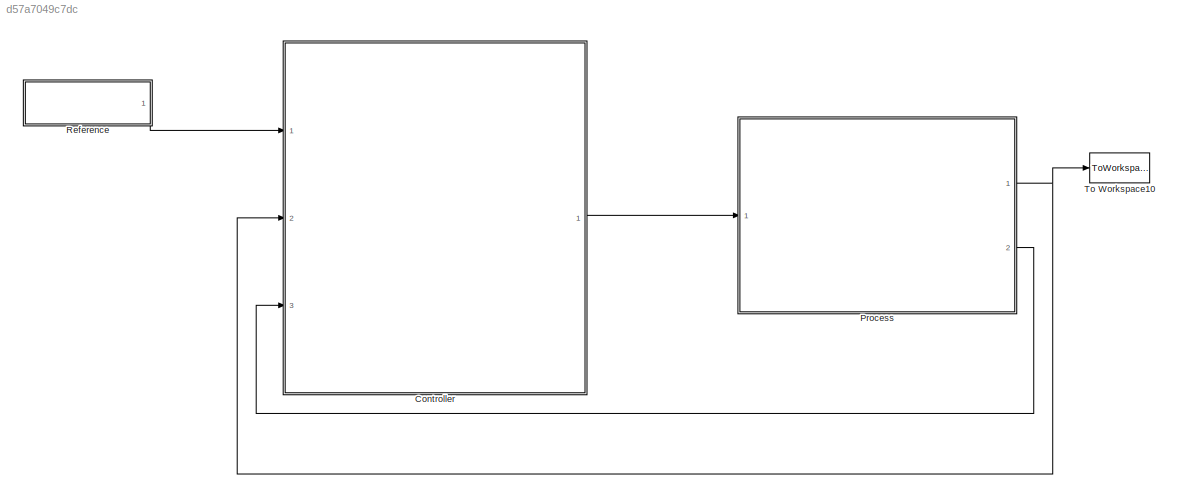
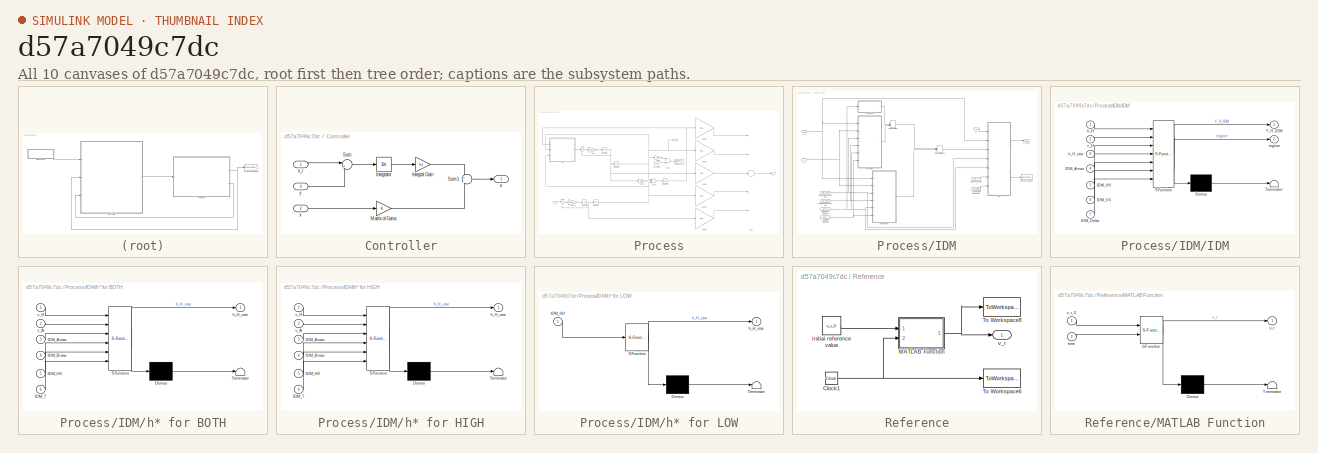
[diagram: thumbnail index - all 10 canvases of the model, root first then tree order]
MODEL slx_d57a7049c7dc
KIND model
CONFIG AbsTol = auto
CONFIG EnableMultiTasking = on
CONFIG FixedStep = auto
CONFIG MaxStep = maxstepsize
CONFIG MinStep = auto
CONFIG RelTol = 1e-3
CONFIG SampleTimeConstraint = Unconstrained
CONFIG Solver = VariableStepAuto
CONFIG SolverName = VariableStepAuto
CONFIG StartTime = 0.0
CONFIG StopTime = tfinal
BLOCK [SubSystem] Controller
  Ports = [3, 1]
  RequestExecContextInheritance = off
BLOCK [Gain] Controller/Integral Gain
  Gain = kz
  OutDataTypeStr = Inherit: Inherit via internal rule
  ParamDataTypeStr = Inherit: Inherit via internal rule
  SaturateOnIntegerOverflow = off
BLOCK [Integrator] Controller/Integrator
  InitialCondition = zini
  Ports = [1, 1]
BLOCK [Gain] Controller/Matrix of Gains
  Gain = K
  Multiplication = Matrix(K*u)
  OutDataTypeStr = Inherit: Inherit via internal rule
  ParamDataTypeStr = Inherit: Inherit via internal rule
  SaturateOnIntegerOverflow = off
BLOCK [Sum] Controller/Sum
  IconShape = round
  InputSameDT = off
  Inputs = |+-
  OutDataTypeStr = Inherit: Inherit via internal rule
  Ports = [2, 1]
  SaturateOnIntegerOverflow = off
BLOCK [Sum] Controller/Sum1
  IconShape = round
  InputSameDT = off
  Inputs = +|-
  OutDataTypeStr = Inherit: Inherit via internal rule
  Ports = [2, 1]
  SaturateOnIntegerOverflow = off
BLOCK [Outport] Controller/u
  IconDisplay = Port number
BLOCK [Inport] Controller/v_r
  IconDisplay = Port number
BLOCK [Inport] Controller/x
  IconDisplay = Port number
  Port = 2
BLOCK [Inport] Controller/y
  IconDisplay = Port number
  Port = 3
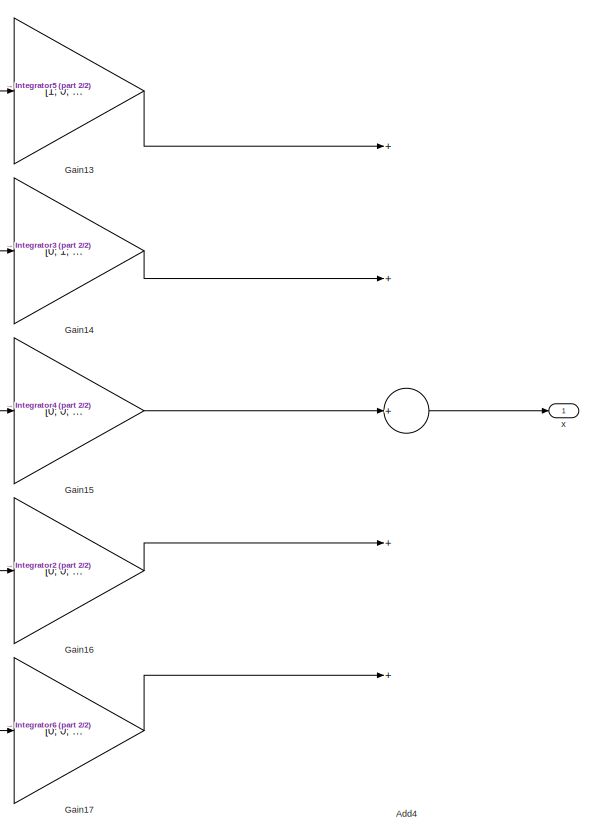
[diagram: Process - part 1/2, right side, full height]
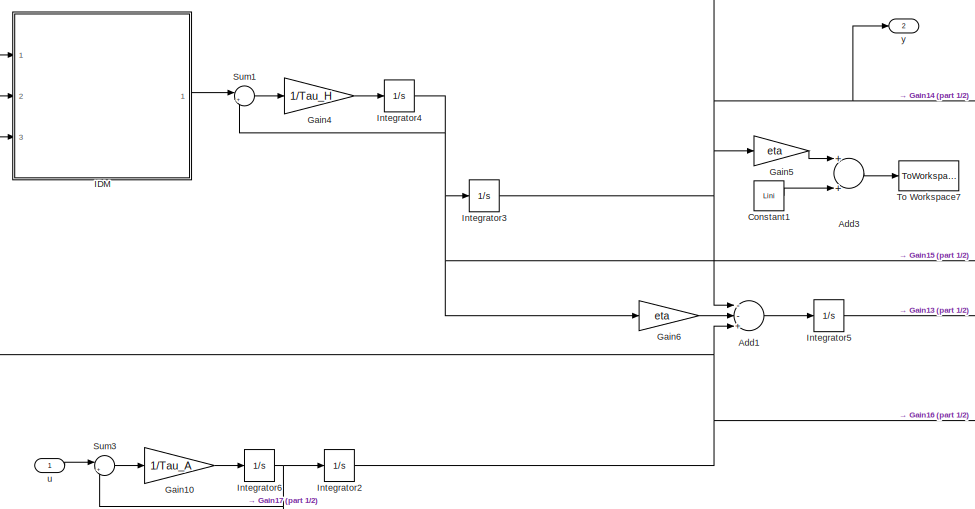
[diagram: Process - part 2/2, middle left region]
BLOCK [SubSystem] Process
  Ports = [1, 2]
  RequestExecContextInheritance = off
BLOCK [Sum] Process/Add1
  InputSameDT = off
  Inputs = --+
  OutDataTypeStr = Inherit: Inherit via internal rule
  Ports = [3, 1]
  SaturateOnIntegerOverflow = off
BLOCK [Sum] Process/Add3
  InputSameDT = off
  OutDataTypeStr = Inherit: Inherit via internal rule
  Ports = [2, 1]
  SaturateOnIntegerOverflow = off
BLOCK [Sum] Process/Add4
  InputSameDT = off
  Inputs = +++++
  OutDataTypeStr = Inherit: Inherit via internal rule
  Ports = [5, 1]
  SaturateOnIntegerOverflow = off
BLOCK [Constant] Process/Constant1
  Value = Lini
BLOCK [Gain] Process/Gain10
  Gain = 1/Tau_A
  Multiplication = Matrix(K*u)
  OutDataTypeStr = Inherit: Inherit via internal rule
  ParamDataTypeStr = Inherit: Inherit via internal rule
  SaturateOnIntegerOverflow = off
BLOCK [Gain] Process/Gain13
  Gain = [1; 0; 0; 0; 0]
  Multiplication = Matrix(K*u)
  OutDataTypeStr = Inherit: Inherit via internal rule
  ParamDataTypeStr = Inherit: Inherit via internal rule
  SaturateOnIntegerOverflow = off
BLOCK [Gain] Process/Gain14
  Gain = [0; 1; 0; 0; 0]
  Multiplication = Matrix(K*u)
  OutDataTypeStr = Inherit: Inherit via internal rule
  ParamDataTypeStr = Inherit: Inherit via internal rule
  SaturateOnIntegerOverflow = off
BLOCK [Gain] Process/Gain15
  Gain = [0; 0; 1; 0; 0]
  Multiplication = Matrix(K*u)
  OutDataTypeStr = Inherit: Inherit via internal rule
  ParamDataTypeStr = Inherit: Inherit via internal rule
  SaturateOnIntegerOverflow = off
BLOCK [Gain] Process/Gain16
  Gain = [0; 0; 0; 1; 0]
  Multiplication = Matrix(K*u)
  OutDataTypeStr = Inherit: Inherit via internal rule
  ParamDataTypeStr = Inherit: Inherit via internal rule
  SaturateOnIntegerOverflow = off
BLOCK [Gain] Process/Gain17
  Gain = [0; 0; 0; 0; 1]
  Multiplication = Matrix(K*u)
  OutDataTypeStr = Inherit: Inherit via internal rule
  ParamDataTypeStr = Inherit: Inherit via internal rule
  SaturateOnIntegerOverflow = off
BLOCK [Gain] Process/Gain4
  Gain = 1/Tau_H
  Multiplication = Matrix(K*u)
  OutDataTypeStr = Inherit: Inherit via internal rule
  ParamDataTypeStr = Inherit: Inherit via internal rule
  SaturateOnIntegerOverflow = off
BLOCK [Gain] Process/Gain5
  Gain = eta
  Multiplication = Matrix(K*u)
  OutDataTypeStr = Inherit: Inherit via internal rule
  ParamDataTypeStr = Inherit: Inherit via internal rule
  SaturateOnIntegerOverflow = off
BLOCK [Gain] Process/Gain6
  Gain = eta
  Multiplication = Matrix(K*u)
  OutDataTypeStr = Inherit: Inherit via internal rule
  ParamDataTypeStr = Inherit: Inherit via internal rule
  SaturateOnIntegerOverflow = off
BLOCK [SubSystem] Process/IDM
  Ports = [3, 1]
  RequestExecContextInheritance = off
BLOCK [Constant] Process/IDM/Acceleration exponent
  Value = IDM_Delta
BLOCK [Constant] Process/IDM/Desired speed
  Value = IDM_V0
BLOCK [Outport] Process/IDM/F_H_IDM
  IconDisplay = Port number
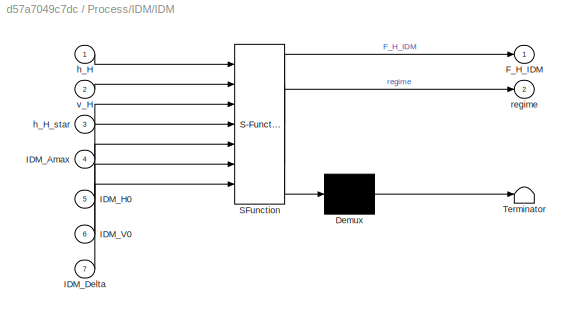
BLOCK [SubSystem] Process/IDM/IDM
  ErrorFcn = Stateflow.Translate.translate
  PermitHierarchicalResolution = ExplicitOnly
  Ports = [7, 2]
  RequestExecContextInheritance = off
  SFBlockType = MATLAB Function
  TreatAsAtomicUnit = on
BLOCK [Demux] Process/IDM/IDM/ Demux 
  Outputs = 1
  Ports = [1, 1]
BLOCK [S-Function] Process/IDM/IDM/ SFunction 
  EnableBusSupport = on
  FunctionName = sf_sfun
  PortCounts = [7 3]
  Ports = [7, 3]
  SFcnIsStateOwnerBlock = off
  SFunctionDeploymentMode = off
  Tag = Stateflow S-Function A_Justo_SCHFV_U_H_F_Zero2_NoLinNoGS 6
BLOCK [Terminator] Process/IDM/IDM/ Terminator 
BLOCK [Outport] Process/IDM/IDM/F_H_IDM
  IconDisplay = Port number
BLOCK [Inport] Process/IDM/IDM/IDM_Amax
  IconDisplay = Port number
  Port = 4
BLOCK [Inport] Process/IDM/IDM/IDM_Delta
  IconDisplay = Port number
  Port = 7
BLOCK [Inport] Process/IDM/IDM/IDM_H0
  IconDisplay = Port number
  Port = 5
BLOCK [Inport] Process/IDM/IDM/IDM_V0
  IconDisplay = Port number
  Port = 6
BLOCK [Inport] Process/IDM/IDM/h_H
  IconDisplay = Port number
BLOCK [Inport] Process/IDM/IDM/h_H_star
  IconDisplay = Port number
  Port = 3
BLOCK [Outport] Process/IDM/IDM/regime
  IconDisplay = Port number
  Port = 2
BLOCK [Inport] Process/IDM/IDM/v_H
  IconDisplay = Port number
  Port = 2
BLOCK [ManualSwitch] Process/IDM/Manual Switch
  CurrentSetting = 0
BLOCK [ManualSwitch] Process/IDM/Manual Switch1
  CurrentSetting = 0
BLOCK [Constant] Process/IDM/Maximum acceleration
  Value = IDM_Amax
BLOCK [Constant] Process/IDM/Maximum deceleration
  Value = IDM_Bmax
BLOCK [Constant] Process/IDM/Minimum net distance
  Value = IDM_H0
BLOCK [Constant] Process/IDM/Safety time headway
  Value = IDM_T
BLOCK [ToWorkspace] Process/IDM/To Workspace1
  FixptAsFi = on
  MaxDataPoints = inf
  Ports = [1]
  SampleTime = -1
  VariableName = regime
BLOCK [SubSystem] Process/IDM/h* for BOTH
  ErrorFcn = Stateflow.Translate.translate
  PermitHierarchicalResolution = ExplicitOnly
  Ports = [6, 1]
  RequestExecContextInheritance = off
  SFBlockType = MATLAB Function
  TreatAsAtomicUnit = on
BLOCK [Demux] Process/IDM/h* for BOTH/ Demux 
  Outputs = 1
  Ports = [1, 1]
BLOCK [S-Function] Process/IDM/h* for BOTH/ SFunction 
  EnableBusSupport = on
  FunctionName = sf_sfun
  PortCounts = [6 2]
  Ports = [6, 2]
  SFcnIsStateOwnerBlock = off
  SFunctionDeploymentMode = off
  Tag = Stateflow S-Function A_Justo_SCHFV_U_H_F_Zero2_NoLinNoGS 4
BLOCK [Terminator] Process/IDM/h* for BOTH/ Terminator 
BLOCK [Inport] Process/IDM/h* for BOTH/IDM_Amax
  IconDisplay = Port number
  Port = 3
BLOCK [Inport] Process/IDM/h* for BOTH/IDM_Bmax
  IconDisplay = Port number
  Port = 4
BLOCK [Inport] Process/IDM/h* for BOTH/IDM_H0
  IconDisplay = Port number
  Port = 5
BLOCK [Inport] Process/IDM/h* for BOTH/IDM_T
  IconDisplay = Port number
  Port = 6
BLOCK [Outport] Process/IDM/h* for BOTH/h_H_star
  IconDisplay = Port number
BLOCK [Inport] Process/IDM/h* for BOTH/v_A
  IconDisplay = Port number
  Port = 2
BLOCK [Inport] Process/IDM/h* for BOTH/v_H
  IconDisplay = Port number
BLOCK [SubSystem] Process/IDM/h* for HIGH
  ErrorFcn = Stateflow.Translate.translate
  PermitHierarchicalResolution = ExplicitOnly
  Ports = [6, 1]
  RequestExecContextInheritance = off
  SFBlockType = MATLAB Function
  TreatAsAtomicUnit = on
BLOCK [Demux] Process/IDM/h* for HIGH/ Demux 
  Outputs = 1
  Ports = [1, 1]
BLOCK [S-Function] Process/IDM/h* for HIGH/ SFunction 
  EnableBusSupport = on
  FunctionName = sf_sfun
  PortCounts = [6 2]
  Ports = [6, 2]
  SFcnIsStateOwnerBlock = off
  SFunctionDeploymentMode = off
  Tag = Stateflow S-Function A_Justo_SCHFV_U_H_F_Zero2_NoLinNoGS 2
BLOCK [Terminator] Process/IDM/h* for HIGH/ Terminator 
BLOCK [Inport] Process/IDM/h* for HIGH/IDM_Amax
  IconDisplay = Port number
  Port = 3
BLOCK [Inport] Process/IDM/h* for HIGH/IDM_Bmax
  IconDisplay = Port number
  Port = 4
BLOCK [Inport] Process/IDM/h* for HIGH/IDM_H0
  IconDisplay = Port number
  Port = 5
BLOCK [Inport] Process/IDM/h* for HIGH/IDM_T
  IconDisplay = Port number
  Port = 6
BLOCK [Outport] Process/IDM/h* for HIGH/h_H_star
  IconDisplay = Port number
BLOCK [Inport] Process/IDM/h* for HIGH/v_A
  IconDisplay = Port number
  Port = 2
BLOCK [Inport] Process/IDM/h* for HIGH/v_H
  IconDisplay = Port number
BLOCK [SubSystem] Process/IDM/h* for LOW
  ErrorFcn = Stateflow.Translate.translate
  PermitHierarchicalResolution = ExplicitOnly
  Ports = [1, 1]
  RequestExecContextInheritance = off
  SFBlockType = MATLAB Function
  TreatAsAtomicUnit = on
BLOCK [Demux] Process/IDM/h* for LOW/ Demux 
  Outputs = 1
  Ports = [1, 1]
BLOCK [S-Function] Process/IDM/h* for LOW/ SFunction 
  EnableBusSupport = on
  FunctionName = sf_sfun
  PortCounts = [1 2]
  Ports = [1, 2]
  SFcnIsStateOwnerBlock = off
  SFunctionDeploymentMode = off
  Tag = Stateflow S-Function A_Justo_SCHFV_U_H_F_Zero2_NoLinNoGS 3
BLOCK [Terminator] Process/IDM/h* for LOW/ Terminator 
BLOCK [Inport] Process/IDM/h* for LOW/IDM_H0
  IconDisplay = Port number
BLOCK [Outport] Process/IDM/h* for LOW/h_H_star
  IconDisplay = Port number
BLOCK [Inport] Process/IDM/h_H
  IconDisplay = Port number
BLOCK [Inport] Process/IDM/v_A
  IconDisplay = Port number
  Port = 3
BLOCK [Inport] Process/IDM/v_H
  IconDisplay = Port number
  Port = 2
BLOCK [Integrator] Process/Integrator2
  InitialCondition = vini
  Ports = [1, 1]
  WrappedStateLowerValue = 0
  WrappedStateUpperValue = 2*pi
BLOCK [Integrator] Process/Integrator3
  InitialCondition = vini
  Ports = [1, 1]
  WrappedStateLowerValue = 0
  WrappedStateUpperValue = 2*pi
BLOCK [Integrator] Process/Integrator4
  InitialCondition = aini
  Ports = [1, 1]
  WrappedStateLowerValue = 0
  WrappedStateUpperValue = 2*pi
BLOCK [Integrator] Process/Integrator5
  InitialCondition = hini
  Ports = [1, 1]
  WrappedStateLowerValue = 0
  WrappedStateUpperValue = 2*pi
BLOCK [Integrator] Process/Integrator6
  InitialCondition = aini
  Ports = [1, 1]
  WrappedStateLowerValue = 0
  WrappedStateUpperValue = 2*pi
BLOCK [Sum] Process/Sum1
  IconShape = round
  InputSameDT = off
  Inputs = |+-
  OutDataTypeStr = Inherit: Inherit via internal rule
  Ports = [2, 1]
  SaturateOnIntegerOverflow = off
BLOCK [Sum] Process/Sum3
  IconShape = round
  InputSameDT = off
  Inputs = |+-
  OutDataTypeStr = Inherit: Inherit via internal rule
  Ports = [2, 1]
  SaturateOnIntegerOverflow = off
BLOCK [ToWorkspace] Process/To Workspace7
  FixptAsFi = on
  MaxDataPoints = inf
  Ports = [1]
  SampleTime = -1
  VariableName = sims_L_H
BLOCK [Inport] Process/u
  IconDisplay = Port number
BLOCK [Outport] Process/x
  IconDisplay = Port number
BLOCK [Outport] Process/y
  IconDisplay = Port number
  Port = 2
BLOCK [SubSystem] Reference
  Ports = [0, 1]
  RequestExecContextInheritance = off
BLOCK [Clock] Reference/Clock1
BLOCK [Constant] Reference/Initial reference value
  Value = v_r_0
BLOCK [SubSystem] Reference/MATLAB Function
  ErrorFcn = Stateflow.Translate.translate
  PermitHierarchicalResolution = ExplicitOnly
  Ports = [2, 1]
  RequestExecContextInheritance = off
  SFBlockType = MATLAB Function
  TreatAsAtomicUnit = on
BLOCK [Demux] Reference/MATLAB Function/ Demux 
  Outputs = 1
  Ports = [1, 1]
BLOCK [S-Function] Reference/MATLAB Function/ SFunction 
  EnableBusSupport = on
  FunctionName = sf_sfun
  PortCounts = [2 2]
  Ports = [2, 2]
  SFcnIsStateOwnerBlock = off
  SFunctionDeploymentMode = off
  Tag = Stateflow S-Function A_Justo_SCHFV_U_H_F_Zero2_NoLinNoGS 1
BLOCK [Terminator] Reference/MATLAB Function/ Terminator 
BLOCK [Inport] Reference/MATLAB Function/time
  IconDisplay = Port number
  Port = 2
BLOCK [Outport] Reference/MATLAB Function/v_r
  IconDisplay = Port number
BLOCK [Inport] Reference/MATLAB Function/v_r_0
  IconDisplay = Port number
BLOCK [ToWorkspace] Reference/To Workspace6
  FixptAsFi = on
  MaxDataPoints = inf
  Ports = [1]
  SampleTime = -1
  VariableName = sims_time
BLOCK [ToWorkspace] Reference/To Workspace8
  FixptAsFi = on
  MaxDataPoints = inf
  Ports = [1]
  SampleTime = -1
  VariableName = sims_v_r
BLOCK [Outport] Reference/v_r
  IconDisplay = Port number
BLOCK [ToWorkspace] To Workspace10
  FixptAsFi = on
  MaxDataPoints = inf
  Ports = [1]
  SampleTime = -1
  VariableName = sims_x
LINE Controller/Integral Gain:1 -> Controller/Sum1:1
LINE Controller/Integrator:1 -> Controller/Integral Gain:1
LINE Controller/Matrix of Gains:1 -> Controller/Sum1:2
LINE Controller/Sum1:1 -> Controller/u:1
LINE Controller/Sum:1 -> Controller/Integrator:1
LINE Controller/v_r:1 -> Controller/Sum:1
LINE Controller/x:1 -> Controller/Matrix of Gains:1
LINE Controller/y:1 -> Controller/Sum:2
LINE Controller:1 -> Process:1
LINE Process/Add1:1 -> Process/Integrator5:1
LINE Process/Add3:1 -> Process/To Workspace7:1
LINE Process/Add4:1 -> Process/x:1
LINE Process/Constant1:1 -> Process/Add3:2
LINE Process/Gain10:1 -> Process/Integrator6:1
LINE Process/Gain13:1 -> Process/Add4:1
LINE Process/Gain14:1 -> Process/Add4:2
LINE Process/Gain15:1 -> Process/Add4:3
LINE Process/Gain16:1 -> Process/Add4:4
LINE Process/Gain17:1 -> Process/Add4:5
LINE Process/Gain4:1 -> Process/Integrator4:1
LINE Process/Gain5:1 -> Process/Add3:1
LINE Process/Gain6:1 -> Process/Add1:2
LINE Process/IDM/Acceleration exponent:1 -> Process/IDM/IDM:7
LINE Process/IDM/Desired speed:1 -> Process/IDM/IDM:6
LINE Process/IDM/IDM:1 -> Process/IDM/F_H_IDM:1
LINE Process/IDM/IDM:2 -> Process/IDM/To Workspace1:1
LINE Process/IDM/Manual Switch1:1 -> Process/IDM/IDM:3
LINE Process/IDM/Manual Switch:1 -> Process/IDM/Manual Switch1:1
NET Process/IDM/Maximum acceleration:1 -> Process/IDM/IDM:4, Process/IDM/h* for BOTH:3, Process/IDM/h* for HIGH:3
NET Process/IDM/Maximum deceleration:1 -> Process/IDM/h* for BOTH:4, Process/IDM/h* for HIGH:4
NET Process/IDM/Minimum net distance:1 -> Process/IDM/IDM:5, Process/IDM/h* for BOTH:5, Process/IDM/h* for HIGH:5, Process/IDM/h* for LOW:1
NET Process/IDM/Safety time headway:1 -> Process/IDM/h* for BOTH:6, Process/IDM/h* for HIGH:6
LINE Process/IDM/h* for BOTH:1 -> Process/IDM/Manual Switch1:2
LINE Process/IDM/h* for HIGH:1 -> Process/IDM/Manual Switch:2
LINE Process/IDM/h* for LOW:1 -> Process/IDM/Manual Switch:1
LINE Process/IDM/h_H:1 -> Process/IDM/IDM:1
NET Process/IDM/v_A:1 -> Process/IDM/h* for BOTH:2, Process/IDM/h* for HIGH:2
NET Process/IDM/v_H:1 -> Process/IDM/IDM:2, Process/IDM/h* for BOTH:1, Process/IDM/h* for HIGH:1
LINE Process/IDM:1 -> Process/Sum1:1
NET Process/Integrator2:1 -> Process/Add1:3, Process/Gain16:1, Process/IDM:3
NET Process/Integrator3:1 -> Process/Add1:1, Process/Gain14:1, Process/Gain5:1, Process/IDM:2, Process/y:1
NET Process/Integrator4:1 -> Process/Gain15:1, Process/Gain6:1, Process/Integrator3:1, Process/Sum1:2
NET Process/Integrator5:1 -> Process/Gain13:1, Process/IDM:1
NET Process/Integrator6:1 -> Process/Gain17:1, Process/Integrator2:1, Process/Sum3:2
LINE Process/Sum1:1 -> Process/Gain4:1
LINE Process/Sum3:1 -> Process/Gain10:1
LINE Process/u:1 -> Process/Sum3:1
NET Process:1 -> Controller:2, To Workspace10:1
LINE Process:2 -> Controller:3
NET Reference/Clock1:1 -> Reference/MATLAB Function:2, Reference/To Workspace6:1
LINE Reference/Initial reference value:1 -> Reference/MATLAB Function:1
NET Reference/MATLAB Function:1 -> Reference/To Workspace8:1, Reference/v_r:1
LINE Reference:1 -> Controller:1
note: NET lines group one-source signal fan-out (src -> all destinations, sorted); 1:1 wires keep LINE
CHART Reference/MATLAB Function states=1 transitions=1
  STATE_LABEL 'eML_blk_kernel()'
  STATE_LABEL 'SCRIPT:\nfunction v_r = fcn(v_r_0, time)\nv_r = v_r_0;\n% if time < 100\n%     v_r = 1*v_r_0;\n% elseif time >=100 && time <200\n%     v_r = 2*v_r_0;\n% elseif time >=200 && time <300\n%     v_r = 3*v_r_0;\n% elseif time >=300 && time <400\n%     v_r = 4*v_r_0;\n% elseif time >=400 && time <500\n%     v_r = 3*v_r_0;\n% elseif time >=500 && time <600\n%     v_r = 2*v_r_0;\n% elseif time >=600 && time <700\n%     v...<+25ch>'
CHART Process/IDM/h* for HIGH states=1 transitions=1
  STATE_LABEL 'eML_blk_kernel()'
  STATE_LABEL 'SCRIPT:\nfunction h_H_star = fcn(v_H,v_A,IDM_Amax,IDM_Bmax,IDM_H0,IDM_T)\nh_H_star = IDM_H0 + IDM_T*v_H + v_H*(v_H-v_A)/(2*sqrt(IDM_Amax*IDM_Bmax));\nend'
CHART Process/IDM/h* for LOW states=1 transitions=1
  STATE_LABEL 'eML_blk_kernel()'
  STATE_LABEL 'SCRIPT:\nfunction h_H_star = fcn(IDM_H0)\nh_H_star = IDM_H0;\nend'
CHART Process/IDM/h* for BOTH states=1 transitions=1
  STATE_LABEL 'eML_blk_kernel()'
  STATE_LABEL 'SCRIPT:\nfunction h_H_star = fcn(v_H,v_A,IDM_Amax,IDM_Bmax,IDM_H0,IDM_T)\nh_H_star = IDM_H0 + ...\n    max( 0, IDM_T*v_H + v_H*(v_H-v_A)/(2*sqrt(IDM_Amax*IDM_Bmax)) );\nend'
CHART Process/IDM/IDM states=1 transitions=1
  STATE_LABEL 'eML_blk_kernel()'
  STATE_LABEL 'SCRIPT:\nfunction [F_H_IDM,regime] = fcn(h_H,v_H,h_H_star,IDM_Amax,IDM_H0,IDM_V0,IDM_Delta)\nif h_H_star == IDM_H0\n    regime=0;\nelse\n    regime=1;\nend\n%v_H=v_H*(v_H>=0); % RECORDAR QUE SE HA AÑADIDO ESTA SATURACIÓN\nF_H_IDM = IDM_Amax*(1-(v_H/IDM_V0)^IDM_Delta-(h_H_star/h_H)^2);\nend'
